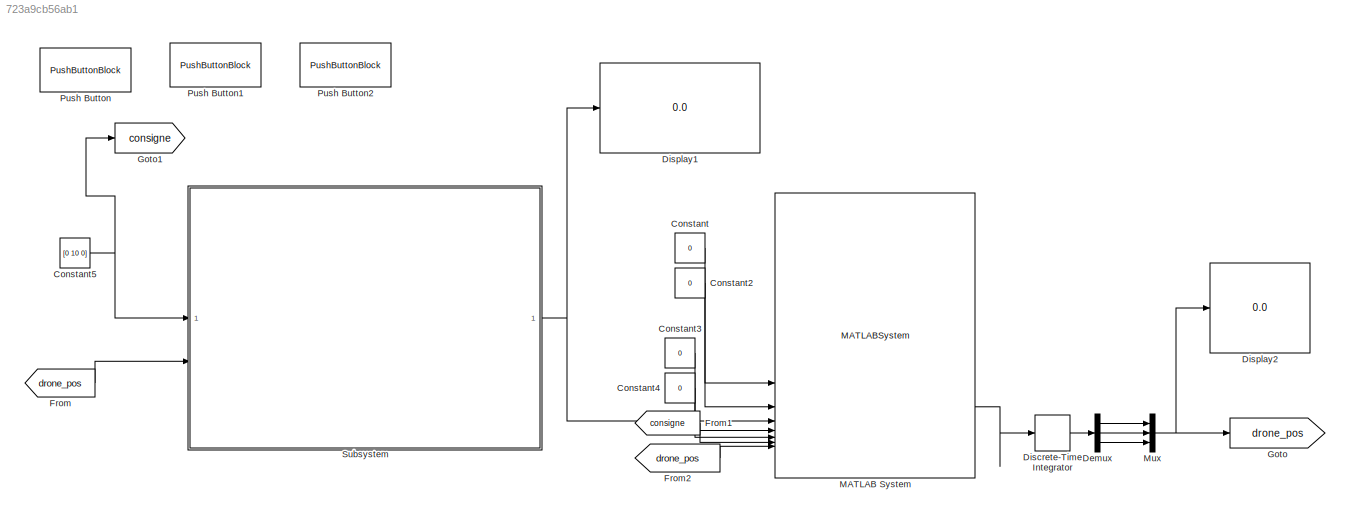
MODEL slx_723a9cb56ab1
KIND model
CONFIG AbsTol = auto
CONFIG EnableMultiTasking = off
CONFIG FixedStep = auto
CONFIG MaxStep = auto
CONFIG MinStep = auto
CONFIG RelTol = 1e-3
CONFIG SampleTimeConstraint = Unconstrained
CONFIG SolverName = VariableStepAuto
CONFIG StartTime = 0.0
CONFIG StopTime = inf
BLOCK [Constant] Constant
  Value = 0
BLOCK [Constant] Constant2
  Value = 0
BLOCK [Constant] Constant3
  Value = 0
BLOCK [Constant] Constant4
  Value = 0
BLOCK [Constant] Constant5
  Value = [0 10 0]
BLOCK [Demux] Demux
  Outputs = 3
BLOCK [DiscreteIntegrator] Discrete-Time Integrator
  ICPrevOutput = DiscIntNeverNeededParam
  ICPrevScaledInput = DiscIntNeverNeededParam
  InitialConditionSetting = Auto
  SampleTime = -1
BLOCK [Display] Display1
  Decimation = 1
BLOCK [Display] Display2
  Decimation = 1
BLOCK [From] From
  GotoTag = drone_pos
BLOCK [From] From1
  GotoTag = consigne
BLOCK [From] From2
  GotoTag = drone_pos
BLOCK [Goto] Goto
  GotoTag = drone_pos
BLOCK [Goto] Goto1
  GotoTag = consigne
BLOCK [MATLABSystem] MATLAB System
  MaskDisplay = disp('Tello_drone_control');\nport_label('input',1,'Slam');\nport_label('input',2,'tkoff');\nport_label('input',3,'landing');\nport_label('input',4,'Speed');\nport_label('input',5,'RadianSpeed');\nport_label('input',6,'movexyz');\nport_label('input',7,'consigne');\nport_label('input',8,'pos_drone');\nport_label('output',1,'image');\nport_label('output',2,'Eulerangles');\nport_label('output',3,'speedXYZ');\npo...<+30ch>
  MaskType = Tello_drone_control
  SimulateUsing = Interpreted execution
  System = Tello_drone_control
  droneIP = 127.0.0.1
BLOCK [Mux] Mux
  DisplayOption = bar
  Inputs = 3
BLOCK [PushButtonBlock] Push Button
  ButtonText = Takenoff
  OffValue = 0.000000
  OnValue = 0
BLOCK [PushButtonBlock] Push Button1
  ButtonText = land
  OffValue = 0.000000
BLOCK [PushButtonBlock] Push Button2
  ButtonText = Move
  OffValue = 0.000000
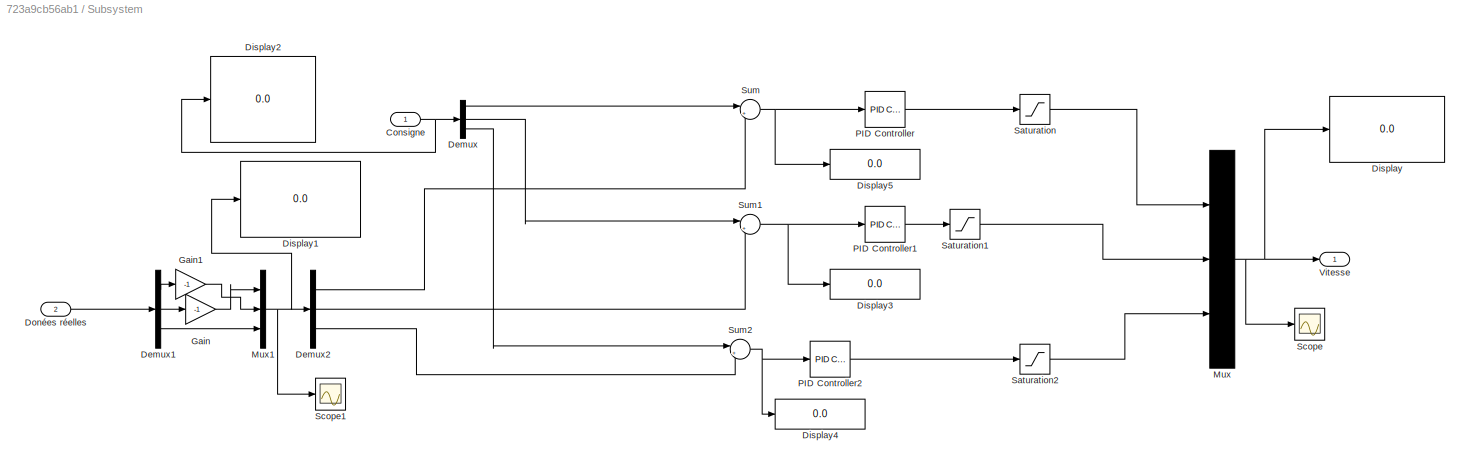
BLOCK [SubSystem] Subsystem
BLOCK [Inport] Subsystem/Consigne 
BLOCK [Demux] Subsystem/Demux
  Outputs = 3
BLOCK [Demux] Subsystem/Demux1
  Outputs = 3
BLOCK [Demux] Subsystem/Demux2
  Outputs = 3
BLOCK [Display] Subsystem/Display
  Decimation = 1
BLOCK [Display] Subsystem/Display1
  Decimation = 1
BLOCK [Display] Subsystem/Display2
  Decimation = 1
BLOCK [Display] Subsystem/Display3
  Decimation = 1
BLOCK [Display] Subsystem/Display4
  Decimation = 1
BLOCK [Display] Subsystem/Display5
  Decimation = 1
BLOCK [Inport] Subsystem/Donées réelles
  Port = 2
BLOCK [Gain] Subsystem/Gain
  Gain = -1
BLOCK [Gain] Subsystem/Gain1
  Gain = -1
BLOCK [Mux] Subsystem/Mux
  DisplayOption = bar
  Inputs = 3
BLOCK [Mux] Subsystem/Mux1
  DisplayOption = bar
  Inputs = 3
BLOCK [Reference] Subsystem/PID Controller  REF=slpidlib/PID Controller
  LibrarySourceBlock = simulink/Continuous/PID Controller
  SourceBlock = slpidlib/PID Controller
  SourceType = PID 1dof
BLOCK [Reference] Subsystem/PID Controller1  REF=slpidlib/PID Controller
  LibrarySourceBlock = simulink/Continuous/PID Controller
  SourceBlock = slpidlib/PID Controller
  SourceType = PID 1dof
BLOCK [Reference] Subsystem/PID Controller2  REF=slpidlib/PID Controller
  LibrarySourceBlock = simulink/Continuous/PID Controller
  SourceBlock = slpidlib/PID Controller
  SourceType = PID 1dof
BLOCK [Saturate] Subsystem/Saturation
  LowerLimit = -15
  UpperLimit = 15
BLOCK [Saturate] Subsystem/Saturation1
  LowerLimit = -15
  UpperLimit = 15
BLOCK [Saturate] Subsystem/Saturation2
  LowerLimit = -50
  UpperLimit = 80
BLOCK [Scope] Subsystem/Scope
  Floating = off
  NumInputPorts = 1
  ScopeSpecificationString = Simulink.scopes.TimeScopeBlockCfg('CurrentConfiguration', extmgr.ConfigurationSet(extmgr.Configuration('Core','General UI',true),extmgr.Configuration('Core','Source UI',true),extmgr.Configuration('Sources','WiredSimulink',true),extmgr.Configuration('Visuals','Time Domain',true,'SerializedDisplays',{struct('MinYLimReal','-18.75','MaxYLimReal','18.75','YLabelReal','','MinYLimMag','0.00000','MaxYLimM...<+1512ch>
BLOCK [Scope] Subsystem/Scope1
  Floating = off
  NumInputPorts = 1
  ScopeSpecificationString = Simulink.scopes.TimeScopeBlockCfg('CurrentConfiguration', extmgr.ConfigurationSet(extmgr.Configuration('Core','General UI',true),extmgr.Configuration('Core','Source UI',true),extmgr.Configuration('Sources','WiredSimulink',true,'DataLoggingVariableName','ScopeData1'),extmgr.Configuration('Visuals','Time Domain',true,'SerializedDisplays',{struct('MinYLimReal','-1.00000','MaxYLimReal','1.00000','YLab...<+1494ch>
BLOCK [Sum] Subsystem/Sum
  Inputs = |+-
BLOCK [Sum] Subsystem/Sum1
  Inputs = |+-
BLOCK [Sum] Subsystem/Sum2
  Inputs = |+-
BLOCK [Outport] Subsystem/Vitesse
LINE Constant2:1 -> MATLAB System:3
LINE Constant3:1 -> MATLAB System:5
LINE Constant4:1 -> MATLAB System:6
NET Constant5:1 -> Goto1:1, Subsystem:1
LINE Constant:1 -> MATLAB System:2
LINE Demux:1 -> Mux:1
LINE Demux:2 -> Mux:2
LINE Demux:3 -> Mux:3
LINE Discrete-Time Integrator:1 -> Demux:1
LINE From1:1 -> MATLAB System:7
LINE From2:1 -> MATLAB System:8
LINE From:1 -> Subsystem:2
LINE MATLAB System:3 -> Discrete-Time Integrator:1
NET Mux:1 -> Display2:1, Goto:1
NET Subsystem/Consigne :1 -> Subsystem/Demux:1, Subsystem/Display2:1
LINE Subsystem/Demux1:1 -> Subsystem/Gain1:1
LINE Subsystem/Demux1:2 -> Subsystem/Gain:1
LINE Subsystem/Demux1:3 -> Subsystem/Mux1:3
LINE Subsystem/Demux2:1 -> Subsystem/Sum:2
LINE Subsystem/Demux2:2 -> Subsystem/Sum1:2
LINE Subsystem/Demux2:3 -> Subsystem/Sum2:2
LINE Subsystem/Demux:1 -> Subsystem/Sum:1
LINE Subsystem/Demux:2 -> Subsystem/Sum1:1
LINE Subsystem/Demux:3 -> Subsystem/Sum2:1
LINE Subsystem/Donées réelles:1 -> Subsystem/Demux1:1
LINE Subsystem/Gain1:1 -> Subsystem/Mux1:2
LINE Subsystem/Gain:1 -> Subsystem/Mux1:1
NET Subsystem/Mux1:1 -> Subsystem/Demux2:1, Subsystem/Display1:1, Subsystem/Scope1:1
NET Subsystem/Mux:1 -> Subsystem/Display:1, Subsystem/Scope:1, Subsystem/Vitesse:1
LINE Subsystem/PID Controller1:1 -> Subsystem/Saturation1:1
LINE Subsystem/PID Controller2:1 -> Subsystem/Saturation2:1
LINE Subsystem/PID Controller:1 -> Subsystem/Saturation:1
LINE Subsystem/Saturation1:1 -> Subsystem/Mux:2
LINE Subsystem/Saturation2:1 -> Subsystem/Mux:3
LINE Subsystem/Saturation:1 -> Subsystem/Mux:1
NET Subsystem/Sum1:1 -> Subsystem/Display3:1, Subsystem/PID Controller1:1
NET Subsystem/Sum2:1 -> Subsystem/Display4:1, Subsystem/PID Controller2:1
NET Subsystem/Sum:1 -> Subsystem/Display5:1, Subsystem/PID Controller:1
NET Subsystem:1 -> Display1:1, MATLAB System:4
note: NET lines group one-source signal fan-out (src -> all destinations, sorted); 1:1 wires keep LINE
